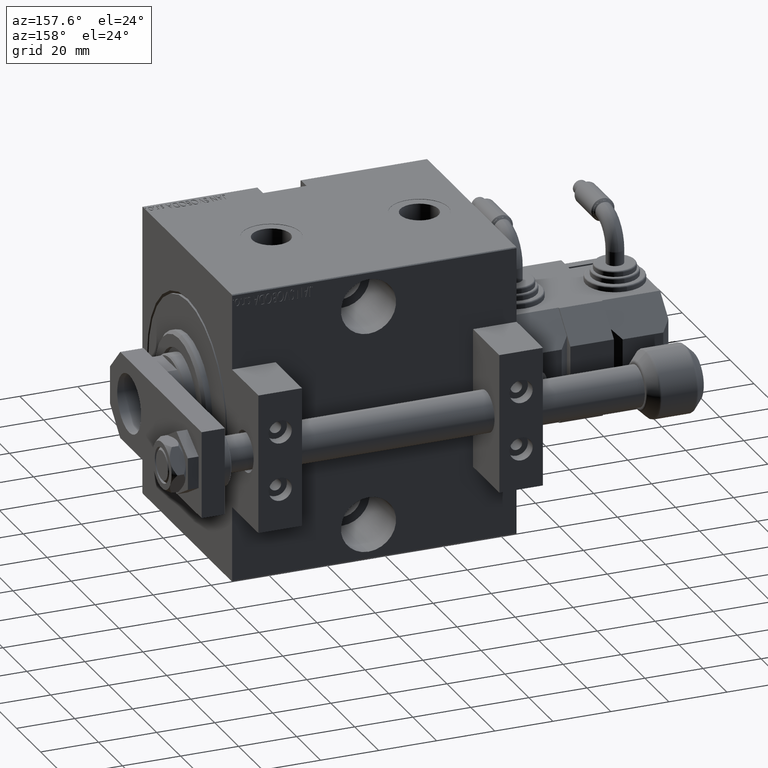
[diagram: clean part render]
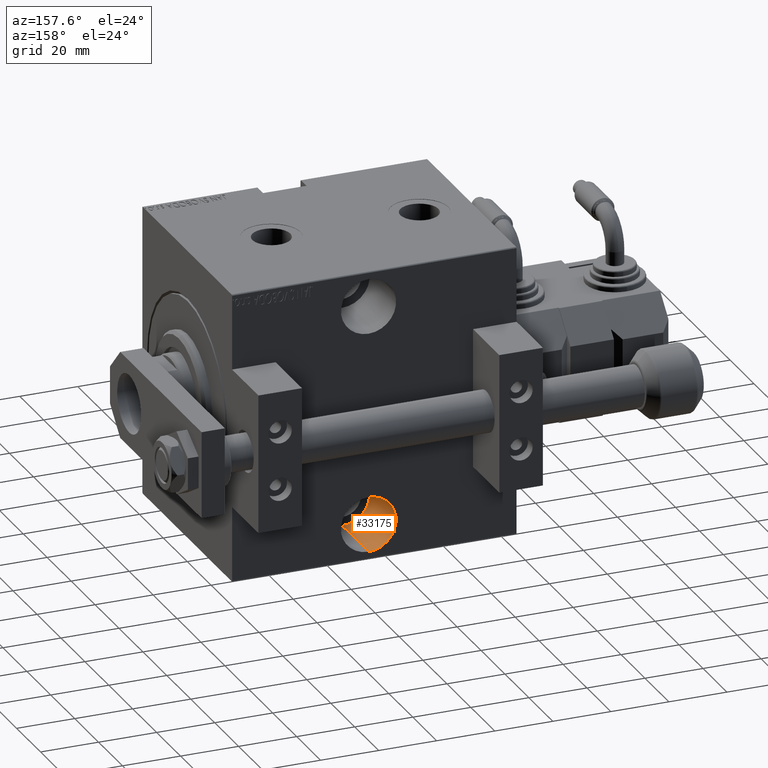
[diagram: same view with one face highlighted and labeled with its STEP entity id]
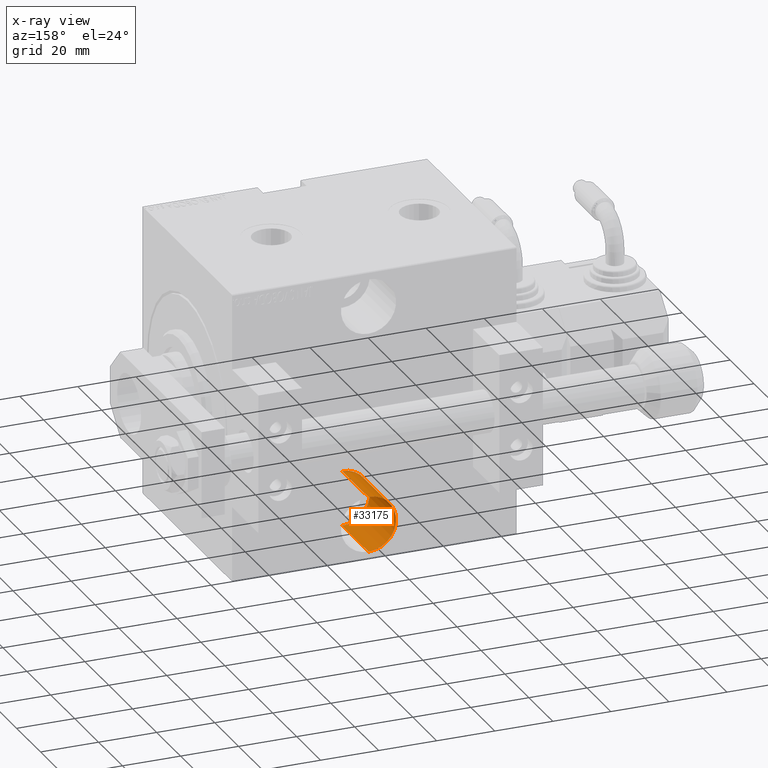
[diagram: x-ray of the same camera — body ghosted, the highlighted face saturated]
A machine part, auxiliary view. The second image highlights one B-rep face of the part: STEP entity #33175.
The next image is the same camera in x-ray: the body ghosted, the highlighted face saturated — about 1% of this face is hidden behind the body in this view.
In plain terms, the highlighted cylindrical surface (edge-blend (fillet) strip) has radius 9.5 mm, axis along (0, 1, 0).
Its self-contained STEP definition (entity closure, byte-faithful):
#943 = AXIS2_PLACEMENT_3D ( 'NONE', #50501, #19122, #30797 ) ;
#999 = VECTOR ( 'NONE', #3730, 1000.000000000000000 ) ;
#1453 = CARTESIAN_POINT ( 'NONE',  ( 47.00000000000002132, -37.50000000000000711, -28.49999999999999645 ) ) ;
#3730 = DIRECTION ( 'NONE',  ( -0.000000000000000000, -1.000000000000000000, 1.963837897332234688E-16 ) ) ;
#6903 = ORIENTED_EDGE ( 'NONE', *, *, #36142, .T. ) ;
#8714 = EDGE_LOOP ( 'NONE', ( #11114, #50424, #42819, #6903 ) ) ;
#9272 = AXIS2_PLACEMENT_3D ( 'NONE', #16591, #12193, #12450 ) ;
#10749 = CARTESIAN_POINT ( 'NONE',  ( 47.00000000000002132, -15.50000000000000533, -28.50000000000000355 ) ) ;
#11114 = ORIENTED_EDGE ( 'NONE', *, *, #16026, .F. ) ;
#12193 = DIRECTION ( 'NONE',  ( 0.000000000000000000, -1.000000000000000000, 1.963837897332234442E-16 ) ) ;
#12450 = DIRECTION ( 'NONE',  ( 0.000000000000000000, -1.826024711554533420E-16, -1.000000000000000000 ) ) ;
#13349 = CIRCLE ( 'NONE', #943, 9.500000000000001776 ) ;
#15133 = VERTEX_POINT ( 'NONE', #43841 ) ;
#15870 = AXIS2_PLACEMENT_3D ( 'NONE', #43378, #46994, #23652 ) ;
#16026 = EDGE_CURVE ( 'NONE', #15133, #24461, #46523, .T. ) ;
#16591 = CARTESIAN_POINT ( 'NONE',  ( 47.00000000000002132, -15.50000000000000711, -38.00000000000000711 ) ) ;
#19122 = DIRECTION ( 'NONE',  ( 0.000000000000000000, -1.000000000000000000, 1.963837897332234442E-16 ) ) ;
#20725 = VERTEX_POINT ( 'NONE', #44548 ) ;
#20777 = CARTESIAN_POINT ( 'NONE',  ( 47.00000000000002132, -15.50000000000000888, -47.50000000000000711 ) ) ;
#23652 = DIRECTION ( 'NONE',  ( 0.000000000000000000, -1.826024711554533420E-16, -1.000000000000000000 ) ) ;
#24461 = VERTEX_POINT ( 'NONE', #1453 ) ;
#27179 = CARTESIAN_POINT ( 'NONE',  ( 47.00000000000002132, -37.50000000000000711, -47.50000000000000000 ) ) ;
#30797 = DIRECTION ( 'NONE',  ( 0.000000000000000000, 0.000000000000000000, -1.000000000000000000 ) ) ;
#32462 = DIRECTION ( 'NONE',  ( -0.000000000000000000, -1.000000000000000000, 1.963837897332234688E-16 ) ) ;
#33175 = ADVANCED_FACE ( 'NONE', ( #39468 ), #46745, .F. ) ;
#33573 = VECTOR ( 'NONE', #32462, 1000.000000000000000 ) ;
#35583 = LINE ( 'NONE', #20777, #33573 ) ;
#36142 = EDGE_CURVE ( 'NONE', #50252, #24461, #13349, .T. ) ;
#36587 = CIRCLE ( 'NONE', #9272, 9.500000000000001776 ) ;
#39468 = FACE_OUTER_BOUND ( 'NONE', #8714, .T. ) ;
#42819 = ORIENTED_EDGE ( 'NONE', *, *, #48632, .T. ) ;
#43378 = CARTESIAN_POINT ( 'NONE',  ( 47.00000000000002132, -15.50000000000000711, -38.00000000000000711 ) ) ;
#43841 = CARTESIAN_POINT ( 'NONE',  ( 47.00000000000002132, -15.50000000000000533, -28.50000000000000355 ) ) ;
#44548 = CARTESIAN_POINT ( 'NONE',  ( 47.00000000000002132, -15.50000000000000888, -47.50000000000000711 ) ) ;
#46523 = LINE ( 'NONE', #10749, #999 ) ;
#46745 = CYLINDRICAL_SURFACE ( 'NONE', #15870, 9.500000000000001776 ) ;
#46994 = DIRECTION ( 'NONE',  ( -0.000000000000000000, -1.000000000000000000, 1.963837897332234688E-16 ) ) ;
#48632 = EDGE_CURVE ( 'NONE', #20725, #50252, #35583, .T. ) ;
#50252 = VERTEX_POINT ( 'NONE', #27179 ) ;
#50424 = ORIENTED_EDGE ( 'NONE', *, *, #51129, .F. ) ;
#50501 = CARTESIAN_POINT ( 'NONE',  ( 47.00000000000002132, -37.50000000000000711, -38.00000000000000000 ) ) ;
#51129 = EDGE_CURVE ( 'NONE', #20725, #15133, #36587, .T. ) ;